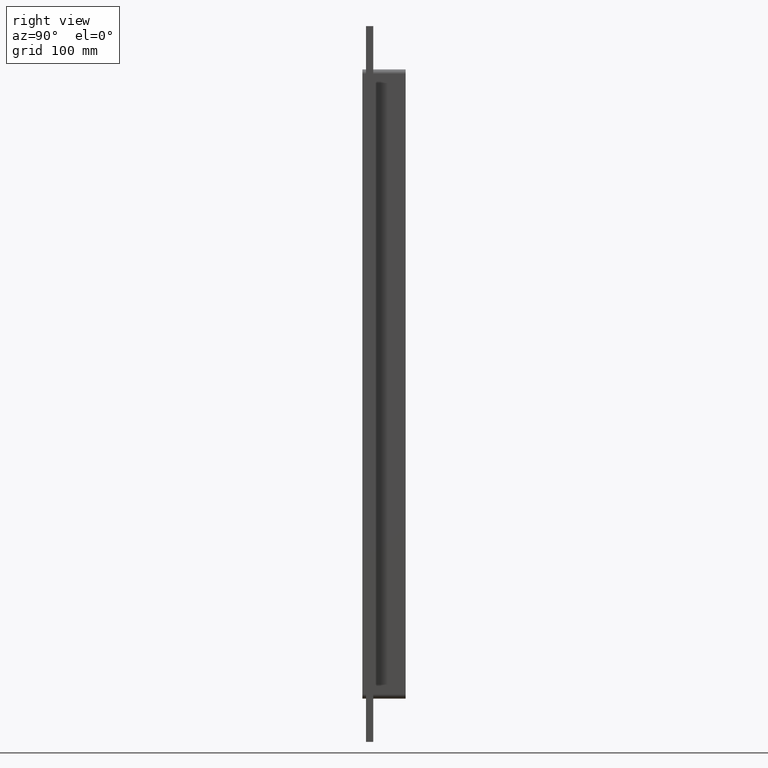
[diagram: clean part render]
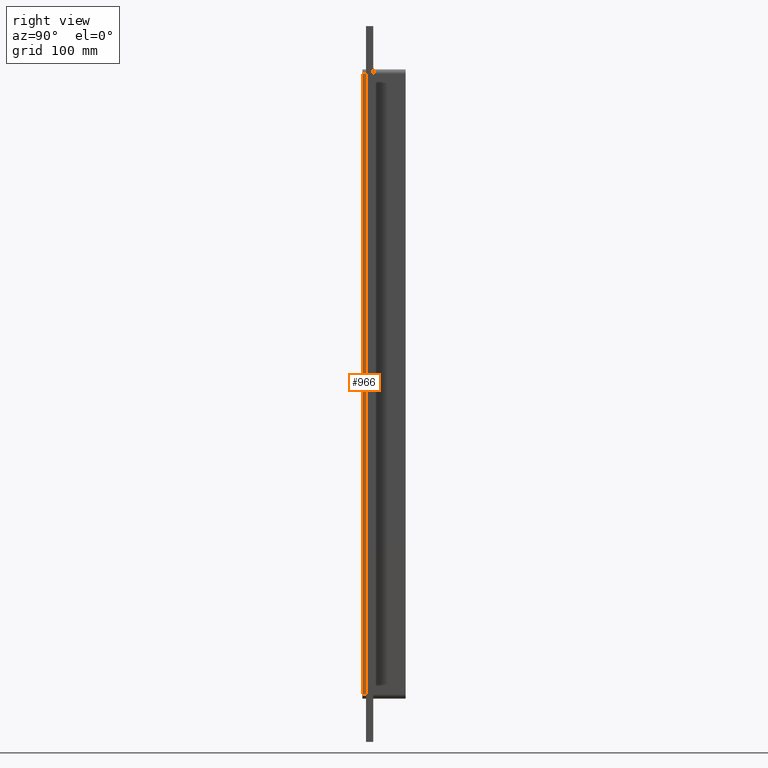
[diagram: same view with one face highlighted and labeled with its STEP entity id]
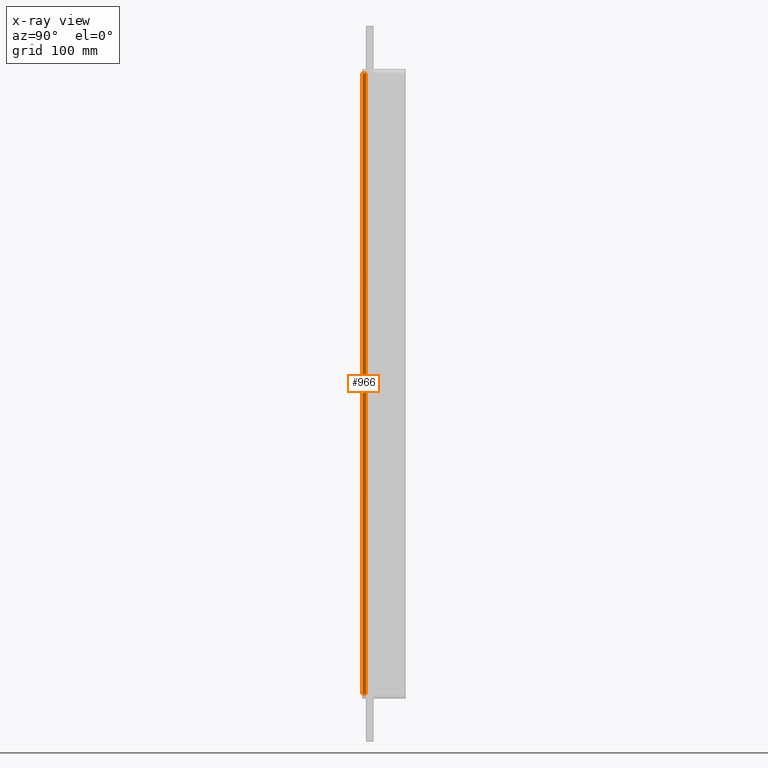
[diagram: x-ray of the same camera — body ghosted, the highlighted face saturated]
A machine part, right view. The second image highlights one B-rep face of the part: STEP entity #966.
The next image is the same camera in x-ray: the body ghosted, the highlighted face saturated — about 0% of this face is hidden behind the body in this view.
In plain terms, the highlighted planar face has unit normal (1, 0, 0).
Its self-contained STEP definition (entity closure, byte-faithful):
#514=CARTESIAN_POINT('',(40.249999999999986,0.0,431.00000000000011));
#515=VERTEX_POINT('',#514);
#525=CARTESIAN_POINT('',(40.249999999999986,0.0,-431.00000000000011));
#526=VERTEX_POINT('',#525);
#527=CARTESIAN_POINT('',(40.249999999999986,0.0,-430.99999999999994));
#528=DIRECTION('',(0.0,0.0,1.0));
#529=VECTOR('',#528,862.0);
#530=LINE('',#527,#529);
#531=EDGE_CURVE('',#526,#515,#530,.T.);
#876=CARTESIAN_POINT('',(40.249999999999986,-5.0,-431.00000000000011));
#877=VERTEX_POINT('',#876);
#878=CARTESIAN_POINT('',(40.249999999999986,-5.0,-431.00000000000011));
#879=DIRECTION('',(0.0,1.0,0.0));
#880=VECTOR('',#879,5.0);
#881=LINE('',#878,#880);
#882=EDGE_CURVE('',#877,#526,#881,.T.);
#943=CARTESIAN_POINT('',(40.249999999999986,0.0,431.00000000000011));
#944=DIRECTION('',(1.0,0.0,0.0));
#945=DIRECTION('',(0.0,0.0,-1.0));
#946=AXIS2_PLACEMENT_3D('',#943,#944,#945);
#947=PLANE('',#946);
#948=ORIENTED_EDGE('',*,*,#531,.T.);
#949=CARTESIAN_POINT('',(40.249999999999986,-5.0,431.00000000000011));
#950=VERTEX_POINT('',#949);
#951=CARTESIAN_POINT('',(40.249999999999986,0.0,431.00000000000011));
#952=DIRECTION('',(0.0,-1.0,0.0));
#953=VECTOR('',#952,5.0);
#954=LINE('',#951,#953);
#955=EDGE_CURVE('',#515,#950,#954,.T.);
#956=ORIENTED_EDGE('',*,*,#955,.T.);
#957=CARTESIAN_POINT('',(40.249999999999986,-5.0,-431.00000000000011));
#958=DIRECTION('',(0.0,0.0,1.0));
#959=VECTOR('',#958,862.00000000000023);
#960=LINE('',#957,#959);
#961=EDGE_CURVE('',#877,#950,#960,.T.);
#962=ORIENTED_EDGE('',*,*,#961,.F.);
#963=ORIENTED_EDGE('',*,*,#882,.T.);
#964=EDGE_LOOP('',(#948,#956,#962,#963));
#965=FACE_OUTER_BOUND('',#964,.T.);
#966=ADVANCED_FACE('',(#965),#947,.T.);